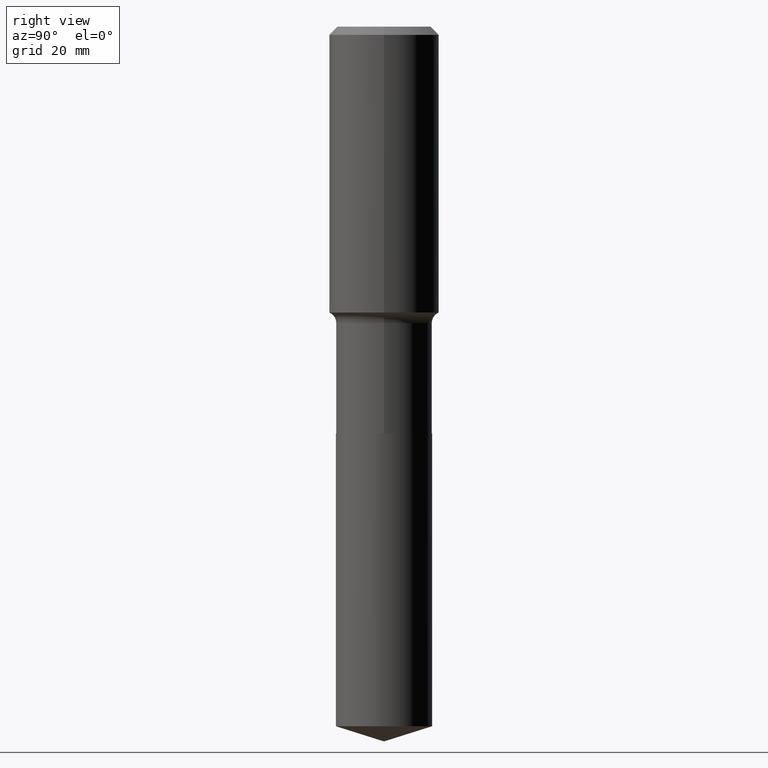
[diagram: clean part render]
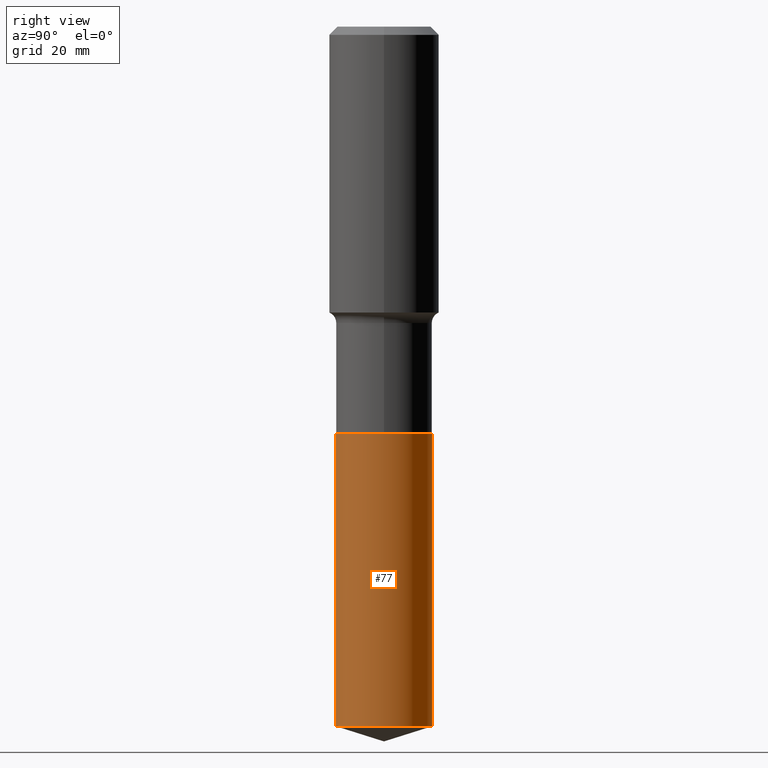
[diagram: same view with one face highlighted and labeled with its STEP entity id]
A machine part, right view. The second image highlights one B-rep face of the part: STEP entity #77.
In plain terms, the highlighted cylindrical surface (partial cylindrical patch) has radius 8.3337 mm, axis along (-0, 0, 1).
Its self-contained STEP definition (entity closure, byte-faithful):
#8 = DIRECTION ( 'NONE',  ( -6.982962677686265133E-15, -1.000000000000000000, 3.330506545156066257E-15 ) ) ;
#23 = CARTESIAN_POINT ( 'NONE',  ( -2.291110054548795878E-15, -0.3281000000000096617, -2.776199999999998447 ) ) ;
#31 = CARTESIAN_POINT ( 'NONE',  ( 2.331290716029005086E-15, 0.3280999999999902883, -2.776200000000000667 ) ) ;
#49 = DIRECTION ( 'NONE',  ( -2.446539038429148563E-29, 3.489948705355884023E-15, 1.000000000000000000 ) ) ;
#50 = ORIENTED_EDGE ( 'NONE', *, *, #403, .F. ) ;
#58 = EDGE_CURVE ( 'NONE', #120, #397, #220, .T. ) ;
#76 = CARTESIAN_POINT ( 'NONE',  ( 6.789110499731175434E-29, -9.693050492896339802E-15, -2.776199999999999779 ) ) ;
#77 = ADVANCED_FACE ( 'NONE', ( #372 ), #292, .T. ) ;
#78 = VERTEX_POINT ( 'NONE', #31 ) ;
#82 = ORIENTED_EDGE ( 'NONE', *, *, #58, .T. ) ;
#86 = LINE ( 'NONE', #89, #190 ) ;
#89 = CARTESIAN_POINT ( 'NONE',  ( -2.291110054548795878E-15, -0.3281000000000096617, -2.776199999999998447 ) ) ;
#109 = CARTESIAN_POINT ( 'NONE',  ( 2.331290716028956177E-15, 0.3280999999999902883, -2.776200000000000667 ) ) ;
#120 = VERTEX_POINT ( 'NONE', #434 ) ;
#152 = EDGE_CURVE ( 'NONE', #397, #78, #474, .T. ) ;
#153 = VECTOR ( 'NONE', #398, 39.37007874015748143 ) ;
#176 = CARTESIAN_POINT ( 'NONE',  ( 6.789110499731175434E-29, -9.693050492896339802E-15, -2.776199999999999779 ) ) ;
#190 = VECTOR ( 'NONE', #49, 39.37007874015748143 ) ;
#201 = CARTESIAN_POINT ( 'NONE',  ( 1.167081331349680741E-28, -1.665672127322136437E-14, -4.771550467368806281 ) ) ;
#220 = CIRCLE ( 'NONE', #492, 0.3281000000000000028 ) ;
#224 = ORIENTED_EDGE ( 'NONE', *, *, #444, .F. ) ;
#250 = VERTEX_POINT ( 'NONE', #23 ) ;
#259 = DIRECTION ( 'NONE',  ( -2.446539038429148563E-29, 3.489948705355884023E-15, 1.000000000000000000 ) ) ;
#269 = ORIENTED_EDGE ( 'NONE', *, *, #152, .T. ) ;
#281 = DIRECTION ( 'NONE',  ( -2.446539038429148563E-29, 3.489948705355884023E-15, 1.000000000000000000 ) ) ;
#292 = CYLINDRICAL_SURFACE ( 'NONE', #349, 0.3281000000000000028 ) ;
#320 = DIRECTION ( 'NONE',  ( -6.982962677686265133E-15, -1.000000000000000000, 3.330506545156066257E-15 ) ) ;
#349 = AXIS2_PLACEMENT_3D ( 'NONE', #76, #259, #320 ) ;
#351 = CIRCLE ( 'NONE', #445, 0.3281000000000000028 ) ;
#372 = FACE_OUTER_BOUND ( 'NONE', #373, .T. ) ;
#373 = EDGE_LOOP ( 'NONE', ( #82, #269, #224, #50 ) ) ;
#397 = VERTEX_POINT ( 'NONE', #419 ) ;
#398 = DIRECTION ( 'NONE',  ( -2.446539038429148563E-29, 3.489948705355884023E-15, 1.000000000000000000 ) ) ;
#403 = EDGE_CURVE ( 'NONE', #120, #250, #86, .T. ) ;
#419 = CARTESIAN_POINT ( 'NONE',  ( 2.331290716029003509E-15, 0.3280999999999831829, -4.771550467368807169 ) ) ;
#428 = DIRECTION ( 'NONE',  ( -6.982962677686265133E-15, -1.000000000000000000, 3.330506545156066257E-15 ) ) ;
#434 = CARTESIAN_POINT ( 'NONE',  ( -2.291110054548746179E-15, -0.3281000000000164896, -4.771550467368805393 ) ) ;
#444 = EDGE_CURVE ( 'NONE', #250, #78, #351, .T. ) ;
#445 = AXIS2_PLACEMENT_3D ( 'NONE', #176, #281, #428 ) ;
#474 = LINE ( 'NONE', #109, #153 ) ;
#488 = DIRECTION ( 'NONE',  ( -2.446539038429148563E-29, 3.489948705355884023E-15, 1.000000000000000000 ) ) ;
#492 = AXIS2_PLACEMENT_3D ( 'NONE', #201, #488, #8 ) ;